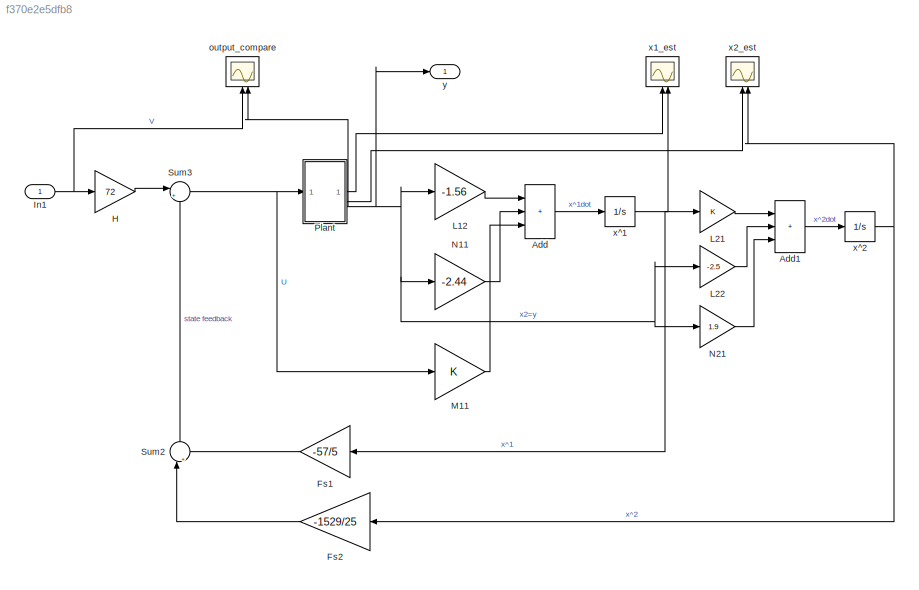
MODEL slx_f370e2e5dfb8
KIND model
CONFIG AbsTol = auto
CONFIG EnableMultiTasking = off
CONFIG FixedStep = auto
CONFIG MaxStep = auto
CONFIG MinStep = auto
CONFIG RelTol = 1e-3
CONFIG SampleTimeConstraint = Unconstrained
CONFIG SolverName = VariableStepAuto
CONFIG StartTime = 0.0
CONFIG StopTime = 10.0
BLOCK [Sum] Add
  IconShape = rectangular
  Inputs = +++
BLOCK [Sum] Add1
  IconShape = rectangular
  Inputs = +++
BLOCK [Gain] Fs1
  Gain = -57/5
BLOCK [Gain] Fs2
  Gain = -1529/25
BLOCK [Gain] H
  Gain = 72
BLOCK [Inport] In1
BLOCK [Gain] L12
  Gain = -1.56
BLOCK [Gain] L21
BLOCK [Gain] L22
  Gain = -2.5
BLOCK [Gain] M11
BLOCK [Gain] N11
  Gain = -2.44
BLOCK [Gain] N21
  Gain = 1.9
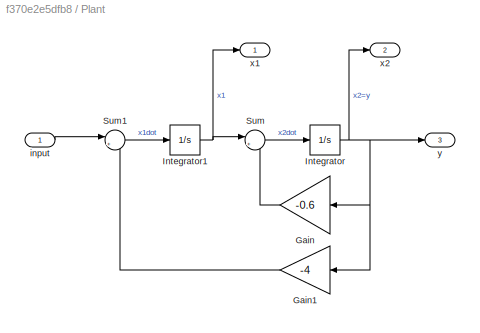
BLOCK [SubSystem] Plant
BLOCK [Gain] Plant/Gain
  Gain = -0.6
BLOCK [Gain] Plant/Gain1
  Gain = -4
BLOCK [Integrator] Plant/Integrator
BLOCK [Integrator] Plant/Integrator1
BLOCK [Sum] Plant/Sum
  Inputs = |++
BLOCK [Sum] Plant/Sum1
  Inputs = |++
BLOCK [Inport] Plant/input
BLOCK [Outport] Plant/x1
BLOCK [Outport] Plant/x2
  Port = 2
BLOCK [Outport] Plant/y
  Port = 3
BLOCK [Sum] Sum2
  Inputs = |++
  NameLocation = left
BLOCK [Sum] Sum3
  Inputs = |++
BLOCK [Scope] output_compare
  Floating = off
  NameLocation = right
  NumInputPorts = 2
  ScopeSpecificationString = Simulink.scopes.TimeScopeBlockCfg('CurrentConfiguration', extmgr.ConfigurationSet(extmgr.Configuration('Core','General UI',true),extmgr.Configuration('Core','Source UI',true),extmgr.Configuration('Sources','WiredSimulink',true,'DataLoggingVariableName','ScopeData2'),extmgr.Configuration('Visuals','Time Domain',true,'SerializedDisplays',{struct('MinYLimReal','-0.12984','MaxYLimReal','1.16852','YLab...<+1788ch>
BLOCK [Scope] x1_est
  Floating = off
  NameLocation = right
  NumInputPorts = 2
  ScopeSpecificationString = Simulink.scopes.TimeScopeBlockCfg('CurrentConfiguration', extmgr.ConfigurationSet(extmgr.Configuration('Core','General UI',true),extmgr.Configuration('Core','Source UI',true),extmgr.Configuration('Sources','WiredSimulink',true,'DataLoggingVariableName','ScopeData1'),extmgr.Configuration('Visuals','Time Domain',true,'SerializedDisplays',{struct('MinYLimReal','-0.51097','MaxYLimReal','4.59871','YLab...<+1453ch>
BLOCK [Scope] x2_est
  Floating = off
  NameLocation = right
  NumInputPorts = 2
  ScopeSpecificationString = Simulink.scopes.TimeScopeBlockCfg('CurrentConfiguration', extmgr.ConfigurationSet(extmgr.Configuration('Core','General UI',true),extmgr.Configuration('Core','Source UI',true),extmgr.Configuration('Sources','WiredSimulink',true),extmgr.Configuration('Visuals','Time Domain',true,'SerializedDisplays',{struct('MinYLimReal','-0.12984','MaxYLimReal','1.16852','YLabelReal','','MinYLimMag','0.00000','MaxY...<+1416ch>
BLOCK [Integrator] x^1
BLOCK [Integrator] x^2
BLOCK [Outport] y
LINE Add1:1 -> x^2:1
LINE Add:1 -> x^1:1
LINE Fs1:1 -> Sum2:2
LINE Fs2:1 -> Sum2:1
LINE H:1 -> Sum3:1
NET In1:1 -> H:1, output_compare:1
LINE L12:1 -> Add:1
LINE L21:1 -> Add1:1
LINE L22:1 -> Add1:2
LINE M11:1 -> Add:3
LINE N11:1 -> Add:2
LINE N21:1 -> Add1:3
LINE Plant/Gain1:1 -> Plant/Sum1:2
LINE Plant/Gain:1 -> Plant/Sum:2
NET Plant/Integrator1:1 -> Plant/Sum:1, Plant/x1:1
NET Plant/Integrator:1 -> Plant/Gain1:1, Plant/Gain:1, Plant/x2:1, Plant/y:1
LINE Plant/Sum1:1 -> Plant/Integrator1:1
LINE Plant/Sum:1 -> Plant/Integrator:1
LINE Plant/input:1 -> Plant/Sum1:1
LINE Plant:1 -> x1_est:1
LINE Plant:2 -> x2_est:1
NET Plant:3 -> L12:1, L22:1, N11:1, N21:1, output_compare:2, y:1
LINE Sum2:1 -> Sum3:2
NET Sum3:1 -> M11:1, Plant:1
NET x^1:1 -> Fs1:1, L21:1, x1_est:2
NET x^2:1 -> Fs2:1, x2_est:2
note: NET lines group one-source signal fan-out (src -> all destinations, sorted); 1:1 wires keep LINE
